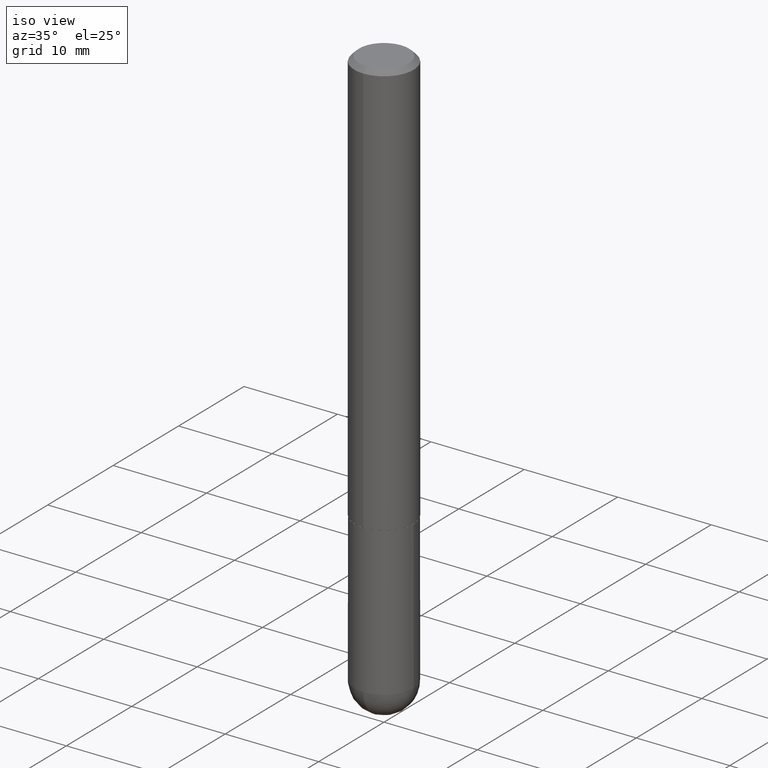
[diagram: clean part render]
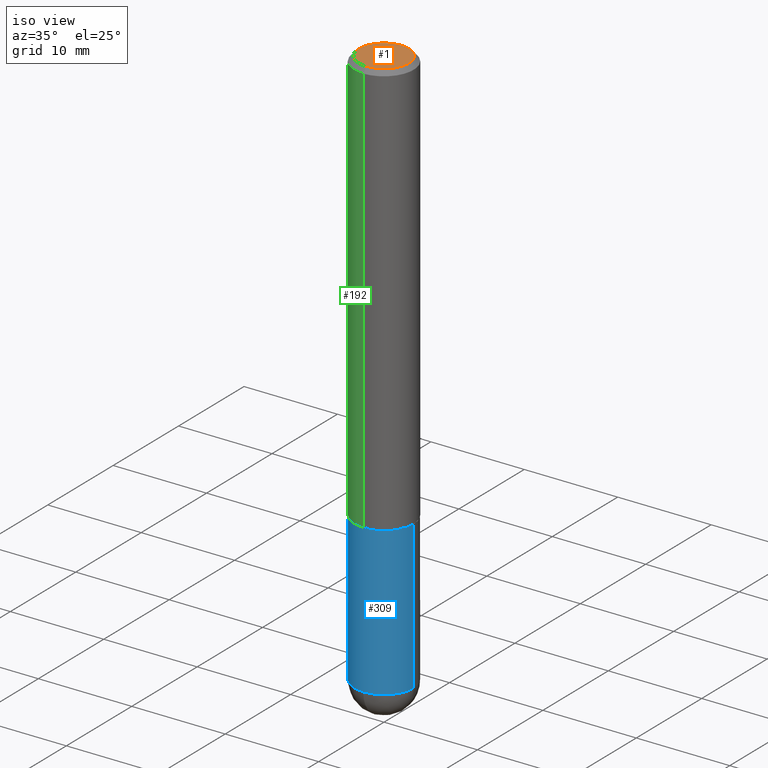
[diagram: same view with three faces highlighted in distinct colors, each labeled with its STEP entity id]
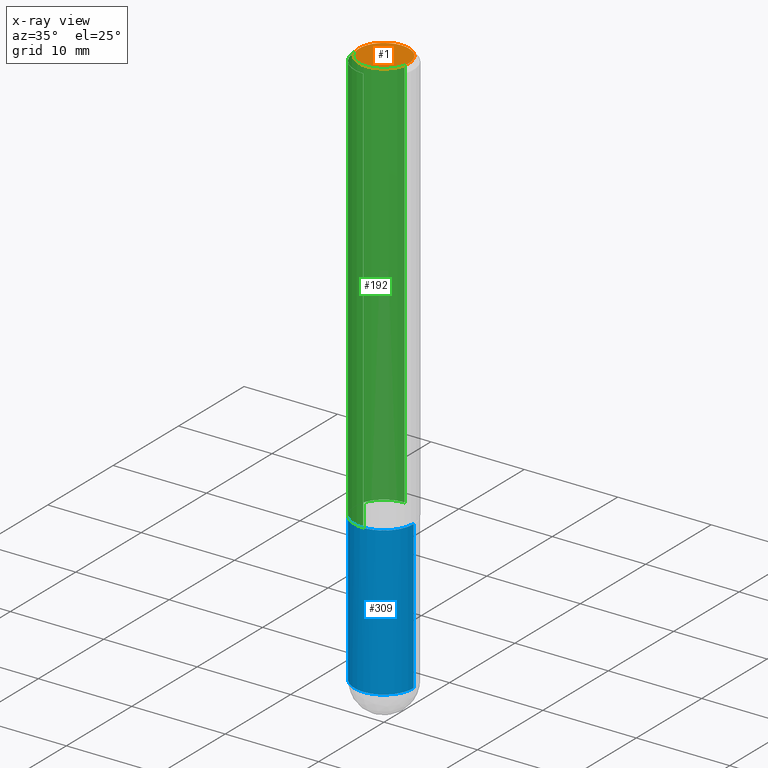
[diagram: x-ray of the same camera — body ghosted, the three highlighted faces saturated]
A machine part, iso view with three faces highlighted in distinct colors.
The next image is the same camera in x-ray (body ghosted, the three faces saturated) — at least one of them is partly hidden behind the body in this view.
Their STEP definitions:

[orange] entity #1 — the highlighted planar face has unit normal (0, -0, -1).
#1 = ADVANCED_FACE ( 'NONE', ( #272 ), #264, .F. ) ;
#46 = CARTESIAN_POINT ( 'NONE',  ( 8.030407079339207309E-16, 0.1049999999999999684, -3.281889281676264539E-16 ) ) ;
#52 = DIRECTION ( 'NONE',  ( -2.445706133332774021E-29, 3.491141472859906642E-15, 1.000000000000000000 ) ) ;
#56 = ORIENTED_EDGE ( 'NONE', *, *, #108, .T. ) ;
#108 = EDGE_CURVE ( 'NONE', #285, #355, #408, .T. ) ;
#130 = CARTESIAN_POINT ( 'NONE',  ( -7.889572697437258181E-16, -0.1049999999999999684, 4.049507811329536610E-16 ) ) ;
#138 = CARTESIAN_POINT ( 'NONE',  ( 7.332110811570578271E-16, 0.1049999999999999684, -3.473793914089582803E-16 ) ) ;
#146 = CARTESIAN_POINT ( 'NONE',  ( -9.386846730164464560E-46, 1.339932442104139966E-31, 3.838092648266359737E-17 ) ) ;
#150 = EDGE_LOOP ( 'NONE', ( #56, #219 ) ) ;
#155 = EDGE_CURVE ( 'NONE', #355, #285, #183, .T. ) ;
#183 = CIRCLE ( 'NONE', #306, 0.1049999999999999684 ) ;
#202 = AXIS2_PLACEMENT_3D ( 'NONE', #292, #320, #257 ) ;
#213 = DIRECTION ( 'NONE',  ( -6.982962677686267499E-15, -1.000000000000000000, 3.491141472859906642E-15 ) ) ;
#219 = ORIENTED_EDGE ( 'NONE', *, *, #155, .T. ) ;
#257 = DIRECTION ( 'NONE',  ( -6.982962677686267499E-15, -1.000000000000000000, 3.491141472859906642E-15 ) ) ;
#264 = PLANE ( 'NONE',  #316 ) ;
#272 = FACE_OUTER_BOUND ( 'NONE', #150, .T. ) ;
#273 = DIRECTION ( 'NONE',  ( 2.445706133332773460E-29, -3.491141472859906642E-15, -1.000000000000000000 ) ) ;
#285 = VERTEX_POINT ( 'NONE', #46 ) ;
#292 = CARTESIAN_POINT ( 'NONE',  ( -9.386846730164464560E-46, 1.339932442104139966E-31, 3.838092648266359737E-17 ) ) ;
#306 = AXIS2_PLACEMENT_3D ( 'NONE', #146, #52, #213 ) ;
#316 = AXIS2_PLACEMENT_3D ( 'NONE', #138, #273, #361 ) ;
#320 = DIRECTION ( 'NONE',  ( -2.445706133332774021E-29, 3.491141472859906642E-15, 1.000000000000000000 ) ) ;
#355 = VERTEX_POINT ( 'NONE', #130 ) ;
#361 = DIRECTION ( 'NONE',  ( 6.982962677686265922E-15, 1.000000000000000000, -3.491141472859906642E-15 ) ) ;
#408 = CIRCLE ( 'NONE', #202, 0.1049999999999999684 ) ;

[blue] entity #309 — the highlighted cylindrical surface (edge-blend (fillet) strip) has radius 3.175 mm, axis along (-0, 0, 1).
#7 = EDGE_CURVE ( 'NONE', #91, #100, #302, .T. ) ;
#20 = ORIENTED_EDGE ( 'NONE', *, *, #206, .T. ) ;
#21 = CARTESIAN_POINT ( 'NONE',  ( 0.000000000000000000, 0.000000000000000000, 0.000000000000000000 ) ) ;
#33 = CARTESIAN_POINT ( 'NONE',  ( 5.807988414689700538E-29, -8.292268179752471696E-15, -2.375000000000000000 ) ) ;
#35 = CARTESIAN_POINT ( 'NONE',  ( -0.1250000000000000000, -6.313001841663864134E-15, -2.375000000000000000 ) ) ;
#48 = FACE_OUTER_BOUND ( 'NONE', #106, .T. ) ;
#58 = AXIS2_PLACEMENT_3D ( 'NONE', #84, #299, #400 ) ;
#66 = CARTESIAN_POINT ( 'NONE',  ( 0.1250000000000000000, -6.982962677686288010E-15, -1.750000000000000222 ) ) ;
#69 = CARTESIAN_POINT ( 'NONE',  ( -8.881784197000694204E-16, -0.1250000000000086320, -2.374999999999999556 ) ) ;
#70 = AXIS2_PLACEMENT_3D ( 'NONE', #336, #104, #216 ) ;
#84 = CARTESIAN_POINT ( 'NONE',  ( 5.807988414689700538E-29, -8.292268179752471696E-15, -2.375000000000000000 ) ) ;
#86 = VERTEX_POINT ( 'NONE', #270 ) ;
#91 = VERTEX_POINT ( 'NONE', #343 ) ;
#99 = AXIS2_PLACEMENT_3D ( 'NONE', #33, #191, #392 ) ;
#100 = VERTEX_POINT ( 'NONE', #66 ) ;
#103 = ORIENTED_EDGE ( 'NONE', *, *, #266, .F. ) ;
#104 = DIRECTION ( 'NONE',  ( -2.445468806185136597E-29, 3.491481338843145583E-15, 1.000000000000000000 ) ) ;
#106 = EDGE_LOOP ( 'NONE', ( #350, #115, #20, #342, #103 ) ) ;
#111 = CARTESIAN_POINT ( 'NONE',  ( 0.1250000000000000000, -8.728703347107833388E-16, 6.095220969744919741E-30 ) ) ;
#115 = ORIENTED_EDGE ( 'NONE', *, *, #354, .T. ) ;
#121 = LINE ( 'NONE', #250, #247 ) ;
#134 = VERTEX_POINT ( 'NONE', #35 ) ;
#154 = VERTEX_POINT ( 'NONE', #69 ) ;
#182 = DIRECTION ( 'NONE',  ( -2.445468806185136597E-29, 3.491481338843145583E-15, 1.000000000000000000 ) ) ;
#191 = DIRECTION ( 'NONE',  ( -2.445468806185136597E-29, 3.491481338843145583E-15, 1.000000000000000000 ) ) ;
#206 = EDGE_CURVE ( 'NONE', #154, #91, #339, .T. ) ;
#216 = DIRECTION ( 'NONE',  ( 1.000000000000000000, -6.982962677686262766E-15, 0.000000000000000000 ) ) ;
#239 = CIRCLE ( 'NONE', #99, 0.1250000000000000000 ) ;
#242 = DIRECTION ( 'NONE',  ( -2.445468806185136877E-29, 3.491481338843145188E-15, 1.000000000000000000 ) ) ;
#247 = VECTOR ( 'NONE', #379, 39.37007874015748143 ) ;
#250 = CARTESIAN_POINT ( 'NONE',  ( -0.1250000000000000000, 8.881784197001252323E-16, -6.148668862818632227E-30 ) ) ;
#266 = EDGE_CURVE ( 'NONE', #86, #100, #274, .T. ) ;
#270 = CARTESIAN_POINT ( 'NONE',  ( -0.1250000000000000000, -6.313001841663863345E-15, -1.750000000000000222 ) ) ;
#274 = CIRCLE ( 'NONE', #70, 0.1250000000000000000 ) ;
#299 = DIRECTION ( 'NONE',  ( -2.445468806185136597E-29, 3.491481338843145583E-15, 1.000000000000000000 ) ) ;
#302 = LINE ( 'NONE', #111, #370 ) ;
#304 = CYLINDRICAL_SURFACE ( 'NONE', #406, 0.1250000000000000000 ) ;
#309 = ADVANCED_FACE ( 'NONE', ( #48 ), #304, .T. ) ;
#314 = EDGE_CURVE ( 'NONE', #134, #86, #121, .T. ) ;
#336 = CARTESIAN_POINT ( 'NONE',  ( 4.279570410823989044E-29, -6.110092342975505460E-15, -1.750000000000000222 ) ) ;
#339 = CIRCLE ( 'NONE', #58, 0.1250000000000000000 ) ;
#342 = ORIENTED_EDGE ( 'NONE', *, *, #7, .T. ) ;
#343 = CARTESIAN_POINT ( 'NONE',  ( 0.1250000000000000000, -8.074050596074771916E-15, -2.375000000000000000 ) ) ;
#350 = ORIENTED_EDGE ( 'NONE', *, *, #314, .F. ) ;
#354 = EDGE_CURVE ( 'NONE', #134, #154, #239, .T. ) ;
#370 = VECTOR ( 'NONE', #242, 39.37007874015748143 ) ;
#379 = DIRECTION ( 'NONE',  ( -2.445468806185136877E-29, 3.491481338843145188E-15, 1.000000000000000000 ) ) ;
#392 = DIRECTION ( 'NONE',  ( 1.000000000000000000, -6.982962677686270655E-15, 0.000000000000000000 ) ) ;
#400 = DIRECTION ( 'NONE',  ( 1.000000000000000000, -6.982962677686270655E-15, 0.000000000000000000 ) ) ;
#406 = AXIS2_PLACEMENT_3D ( 'NONE', #21, #182, #411 ) ;
#411 = DIRECTION ( 'NONE',  ( 1.000000000000000000, -6.982962677686266711E-15, 4.876176775795935793E-29 ) ) ;

[green] entity #192 — the highlighted cylindrical surface (edge-blend (fillet) strip) has radius 3.175 mm, axis along (-0, 0, 1).
#9 = CARTESIAN_POINT ( 'NONE',  ( 4.277540027199021844E-29, -6.106006436031975850E-15, -1.749000000000000110 ) ) ;
#14 = CIRCLE ( 'NONE', #345, 0.1250000000000000000 ) ;
#19 = DIRECTION ( 'NONE',  ( -6.982962677686266711E-15, -1.000000000000000000, 3.491141472859906642E-15 ) ) ;
#26 = VERTEX_POINT ( 'NONE', #42 ) ;
#32 = DIRECTION ( 'NONE',  ( -2.445706133332773740E-29, 3.491141472859906642E-15, 1.000000000000000000 ) ) ;
#37 = EDGE_CURVE ( 'NONE', #88, #26, #14, .T. ) ;
#41 = AXIS2_PLACEMENT_3D ( 'NONE', #324, #330, #19 ) ;
#42 = CARTESIAN_POINT ( 'NONE',  ( -8.575622497214408537E-16, -0.1250000000000000555, -0.01999999999999959102 ) ) ;
#60 = ORIENTED_EDGE ( 'NONE', *, *, #37, .F. ) ;
#63 = CARTESIAN_POINT ( 'NONE',  ( -8.728703347107841277E-16, -0.1250000000000001110, 4.363926841074887247E-16 ) ) ;
#71 = VERTEX_POINT ( 'NONE', #398 ) ;
#75 = CIRCLE ( 'NONE', #152, 0.1250000000000002498 ) ;
#88 = VERTEX_POINT ( 'NONE', #117 ) ;
#90 = LINE ( 'NONE', #161, #133 ) ;
#117 = CARTESIAN_POINT ( 'NONE',  ( 8.728703347107837333E-16, 0.1249999999999999306, -0.02000000000000046185 ) ) ;
#119 = VECTOR ( 'NONE', #356, 39.37007874015748143 ) ;
#133 = VECTOR ( 'NONE', #32, 39.37007874015748143 ) ;
#137 = EDGE_CURVE ( 'NONE', #71, #144, #75, .T. ) ;
#144 = VERTEX_POINT ( 'NONE', #225 ) ;
#152 = AXIS2_PLACEMENT_3D ( 'NONE', #9, #395, #193 ) ;
#161 = CARTESIAN_POINT ( 'NONE',  ( 8.881784197001260212E-16, 0.1250000000000001110, -4.363926841074887247E-16 ) ) ;
#172 = CARTESIAN_POINT ( 'NONE',  ( 4.891412266665553962E-31, -6.982282945719821124E-17, -0.02000000000000002470 ) ) ;
#176 = ORIENTED_EDGE ( 'NONE', *, *, #344, .F. ) ;
#192 = ADVANCED_FACE ( 'NONE', ( #363 ), #243, .T. ) ;
#193 = DIRECTION ( 'NONE',  ( -6.982962677686265133E-15, -1.000000000000000000, 4.370956789862812472E-15 ) ) ;
#225 = CARTESIAN_POINT ( 'NONE',  ( -8.728703347107421208E-16, -0.1250000000000063560, -1.748999999999999666 ) ) ;
#231 = LINE ( 'NONE', #63, #119 ) ;
#243 = CYLINDRICAL_SURFACE ( 'NONE', #41, 0.1250000000000001110 ) ;
#253 = EDGE_LOOP ( 'NONE', ( #176, #394, #283, #60 ) ) ;
#283 = ORIENTED_EDGE ( 'NONE', *, *, #399, .T. ) ;
#297 = DIRECTION ( 'NONE',  ( -2.445706133332774021E-29, 3.491141472859906642E-15, 1.000000000000000000 ) ) ;
#324 = CARTESIAN_POINT ( 'NONE',  ( 0.000000000000000000, 0.000000000000000000, 0.000000000000000000 ) ) ;
#325 = DIRECTION ( 'NONE',  ( -6.982962677686265922E-15, -1.000000000000000000, 3.483106191921935554E-15 ) ) ;
#330 = DIRECTION ( 'NONE',  ( -2.445706133332774021E-29, 3.491141472859906642E-15, 1.000000000000000000 ) ) ;
#344 = EDGE_CURVE ( 'NONE', #71, #88, #90, .T. ) ;
#345 = AXIS2_PLACEMENT_3D ( 'NONE', #172, #297, #325 ) ;
#356 = DIRECTION ( 'NONE',  ( -2.445706133332773740E-29, 3.491141472859906642E-15, 1.000000000000000000 ) ) ;
#363 = FACE_OUTER_BOUND ( 'NONE', #253, .T. ) ;
#394 = ORIENTED_EDGE ( 'NONE', *, *, #137, .T. ) ;
#395 = DIRECTION ( 'NONE',  ( -2.445706133332774021E-29, 3.491141472859906642E-15, 1.000000000000000000 ) ) ;
#398 = CARTESIAN_POINT ( 'NONE',  ( 8.881784197001479121E-16, 0.1249999999999941019, -1.749000000000000554 ) ) ;
#399 = EDGE_CURVE ( 'NONE', #144, #26, #231, .T. ) ;